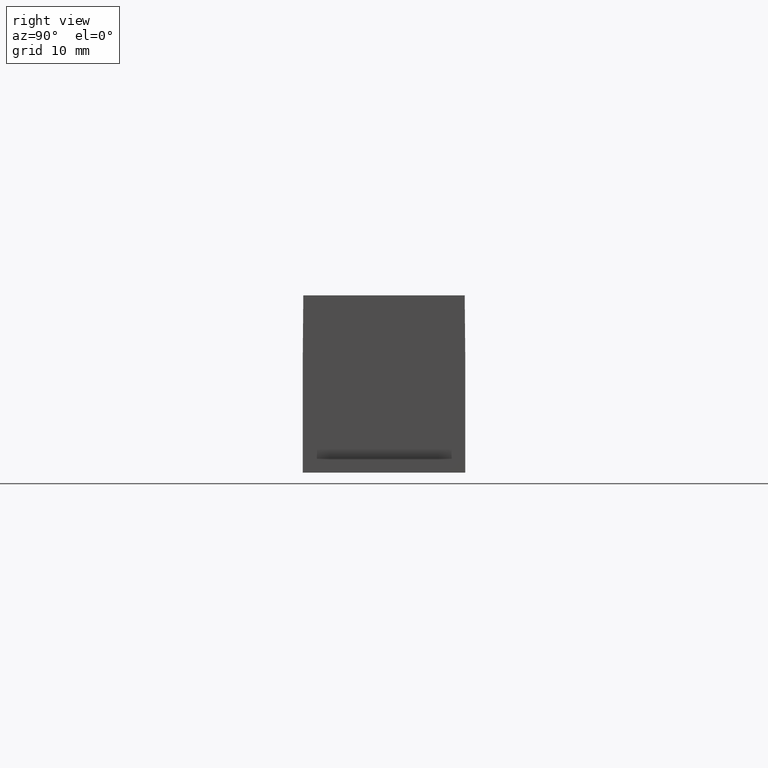
[diagram: clean part render]
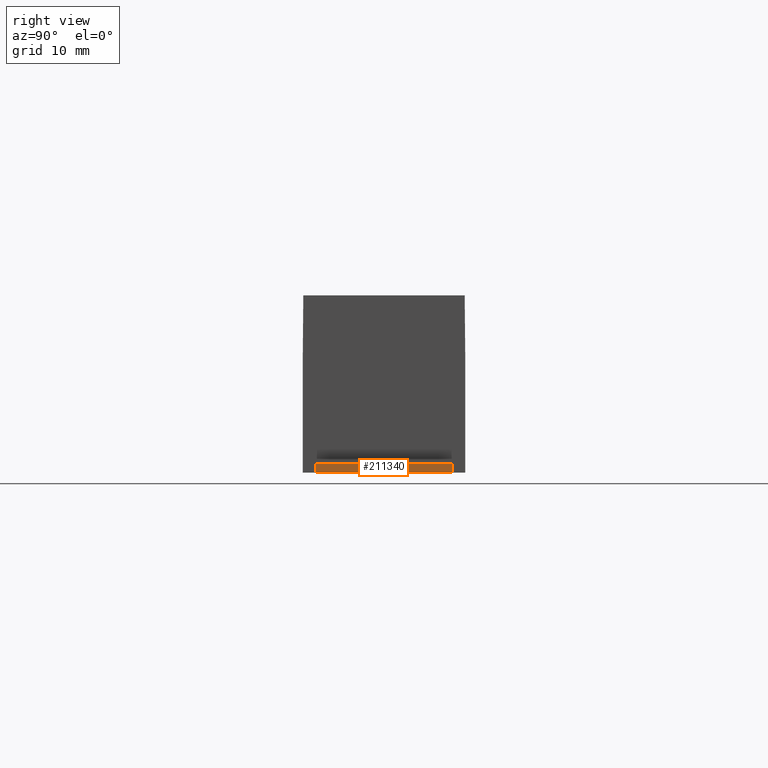
[diagram: same view with one face highlighted and labeled with its STEP entity id]
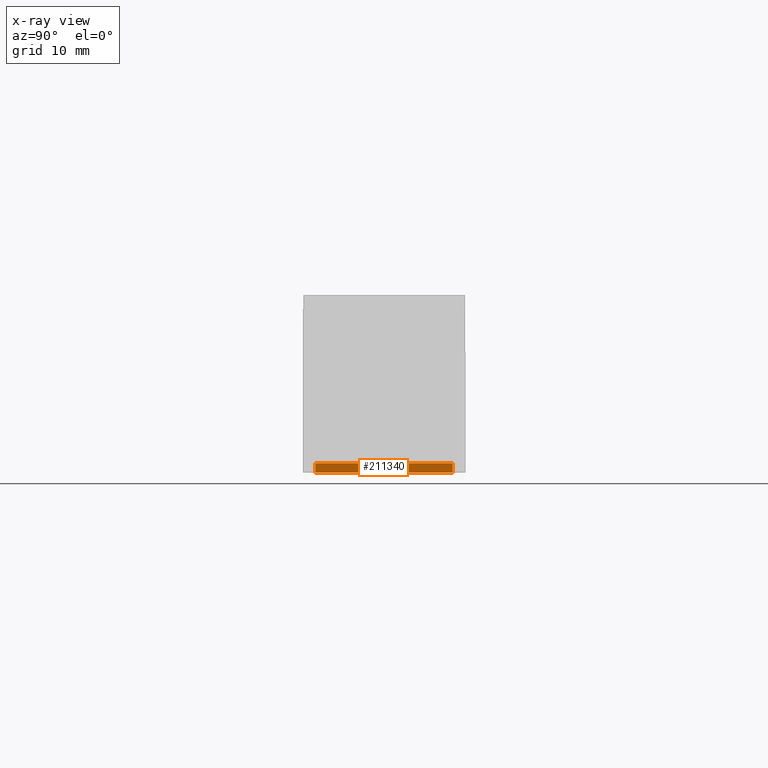
[diagram: x-ray of the same camera — body ghosted, the highlighted face saturated]
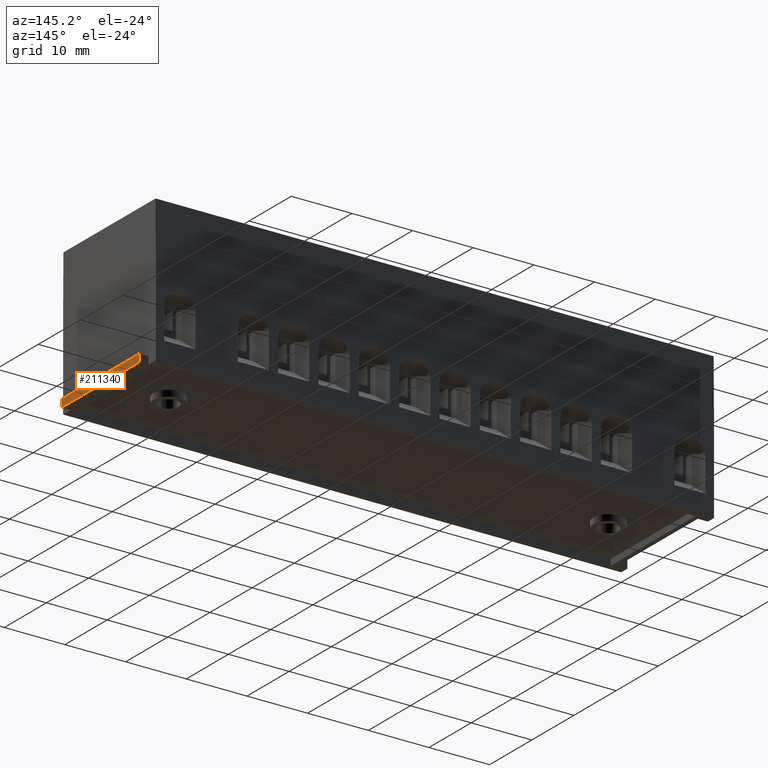
[diagram: same view with one face highlighted and labeled with its STEP entity id]
A machine part, right view. The second image highlights one B-rep face of the part: STEP entity #211340.
The next image is the same camera in x-ray: the body ghosted, the highlighted face saturated — about 0% of this face is hidden behind the body in this view.
A second angle (auxiliary view) of the same face is appended — the face is thin or edge-on in the first view.
In plain terms, the highlighted planar face has unit normal (1, 0, 0).
Its self-contained STEP definition (entity closure, byte-faithful):
#123080=CARTESIAN_POINT('',(-41.9823377413369,-195.978083115857,
20.1722636806417));
#123090=VERTEX_POINT('',#123080);
#123120=CARTESIAN_POINT('',(-41.9823377413369,-195.978083115857,
-31.843841120151));
#123130=DIRECTION('',(0.,3.33066907387547E-16,1.));
#123140=VECTOR('',#123130,1.);
#123150=LINE('',#123120,#123140);
#123160=CARTESIAN_POINT('',(-41.9823377413369,-195.978083115857,
1.67226368064173));
#123170=VERTEX_POINT('',#123160);
#123180=EDGE_CURVE('',#123170,#123090,#123150,.T.);
#211040=CARTESIAN_POINT('',(-41.9823377413369,-195.503083115857,
10.9222636806417));
#211050=DIRECTION('',(1.,0.,0.));
#211060=DIRECTION('',(0.,-2.22044604925031E-16,-1.));
#211070=AXIS2_PLACEMENT_3D('',#211040,#211050,#211060);
#211080=PLANE('',#211070);
#211090=CARTESIAN_POINT('',(-41.9823377413369,-194.518083115857,
20.1722636806417));
#211100=DIRECTION('',(0.,-1.,2.22044604925031E-16));
#211110=VECTOR('',#211100,1.);
#211120=LINE('',#211090,#211110);
#211130=CARTESIAN_POINT('',(-41.9823377413369,-194.728083115857,
20.1722636806417));
#211140=VERTEX_POINT('',#211130);
#211150=EDGE_CURVE('',#211140,#123090,#211120,.T.);
#211160=ORIENTED_EDGE('',*,*,#211150,.T.);
#211170=CARTESIAN_POINT('',(-41.9823377413369,-194.728083115857,
1.67226368064173));
#211180=DIRECTION('',(0.,2.22044604925031E-16,1.));
#211190=VECTOR('',#211180,1.);
#211200=LINE('',#211170,#211190);
#211210=CARTESIAN_POINT('',(-41.9823377413369,-194.728083115857,
1.67226368064173));
#211220=VERTEX_POINT('',#211210);
#211230=EDGE_CURVE('',#211220,#211140,#211200,.T.);
#211240=ORIENTED_EDGE('',*,*,#211230,.T.);
#211250=CARTESIAN_POINT('',(-41.9823377413369,-194.488083115857,
1.67226368064173));
#211260=DIRECTION('',(0.,-1.,2.22044604925031E-16));
#211270=VECTOR('',#211260,1.);
#211280=LINE('',#211250,#211270);
#211290=EDGE_CURVE('',#211220,#123170,#211280,.T.);
#211300=ORIENTED_EDGE('',*,*,#211290,.F.);
#211310=ORIENTED_EDGE('',*,*,#123180,.F.);
#211320=EDGE_LOOP('',(#211310,#211300,#211240,#211160));
#211330=FACE_OUTER_BOUND('',#211320,.T.);
#211340=ADVANCED_FACE('',(#211330),#211080,.T.);